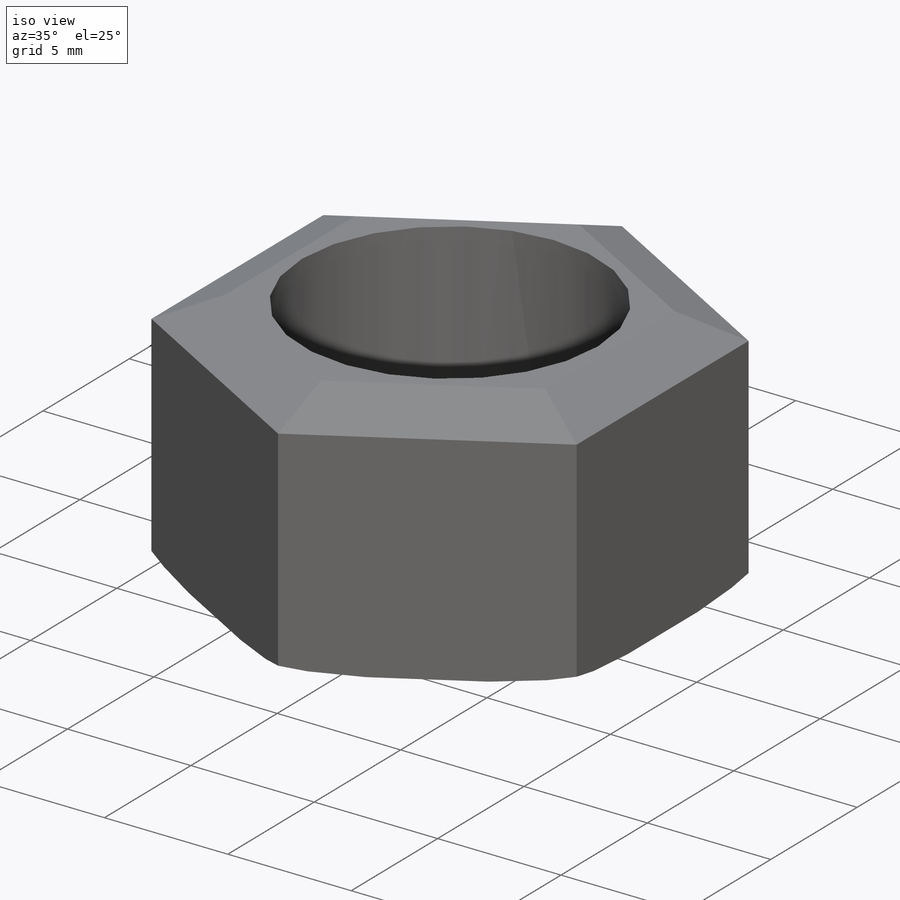
[diagram: iso view]
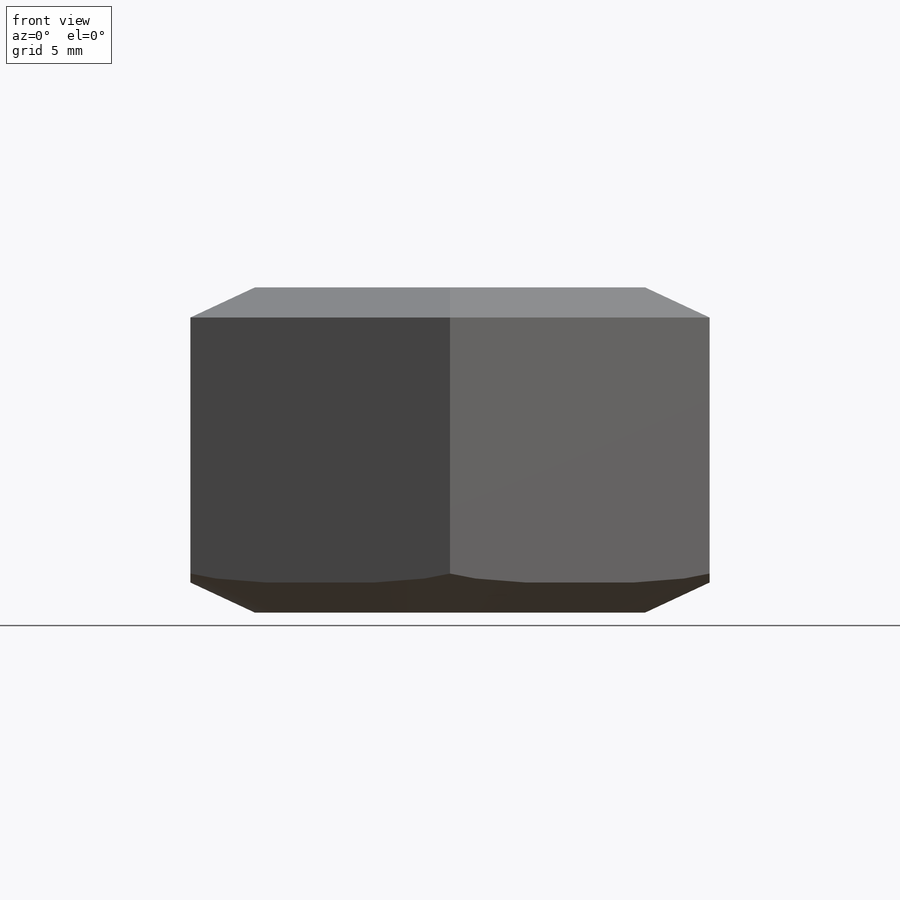
[diagram: front view]
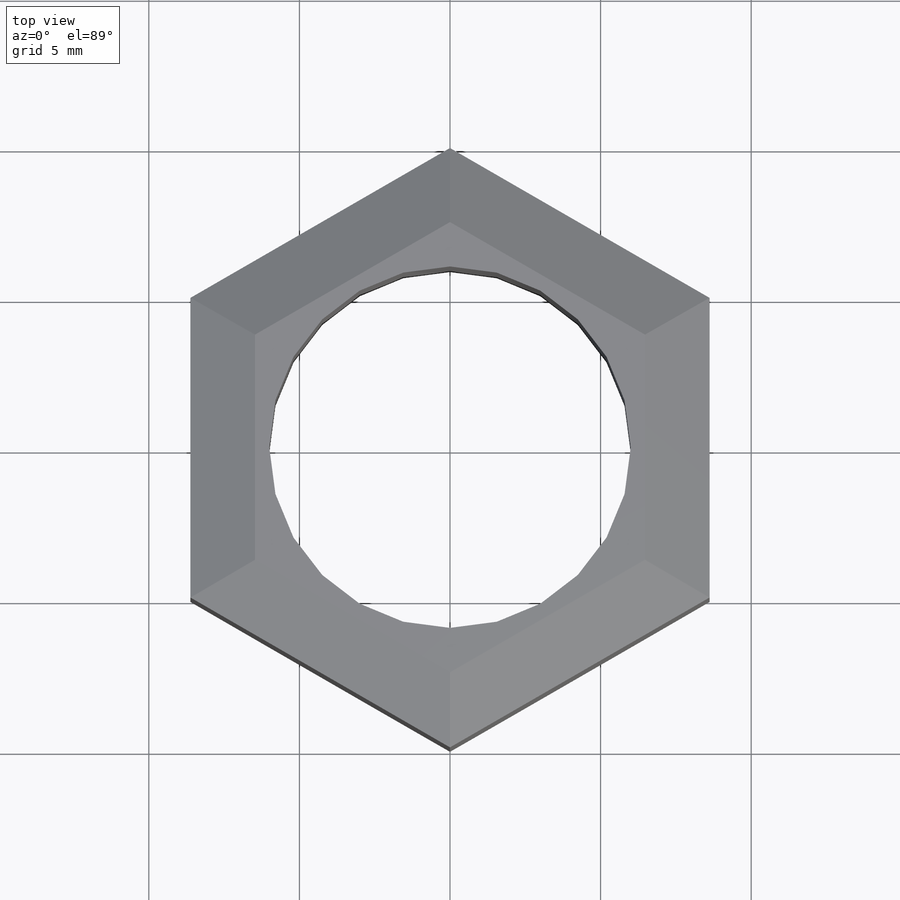
[diagram: top view]
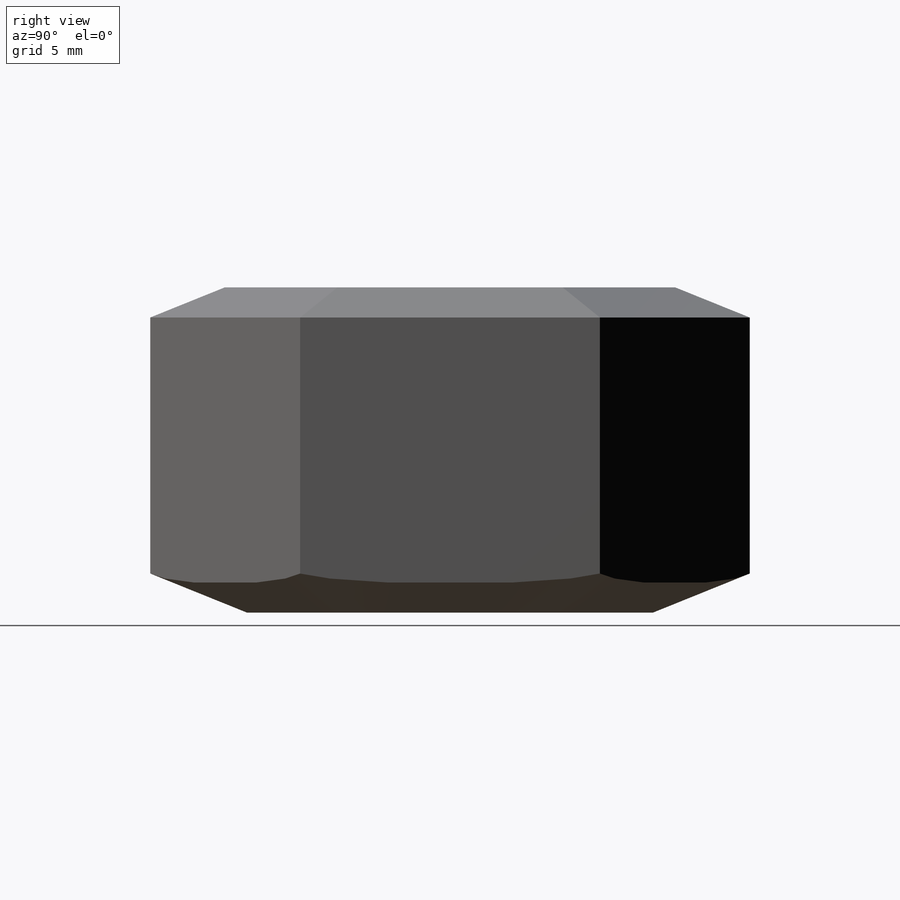
[diagram: right view]
SOLIDWORKS PART (.sldprt)
format: sldprt  version: not decoded by parser v0  size: 233,472 bytes
history: native  units: mm
features: plane x3, chamfer x2, material x1, sketch x1, extrude x1, fillet x1 (+10 scaffold rows collapsed)
feature tree (19):
  scaffold x10  (default folders/planes/origin — collapsed)
  material  "Материал <не указан>"
  plane  "Спереди"
  plane  "Сверху"
  plane  "Справа"
  sketch  "Эскиз1"  dims[D1=~5.744635mm]
  extrude  "Бобышка-Вытянуть1"  Depth=10.8mm
  chamfer  "Фаска1"  Distance=1mm Angle=65deg
  chamfer  "Фаска2"  Distance=1mm Angle=65deg
  fillet  "Скругление2"  Radius=12mm
decode coverage: 5 of 5 modeling features carry decoded parameters
note: ~ marks probable driven/reference dimensions
note: suppression state not decoded; provenance and decode notes live in map.json
